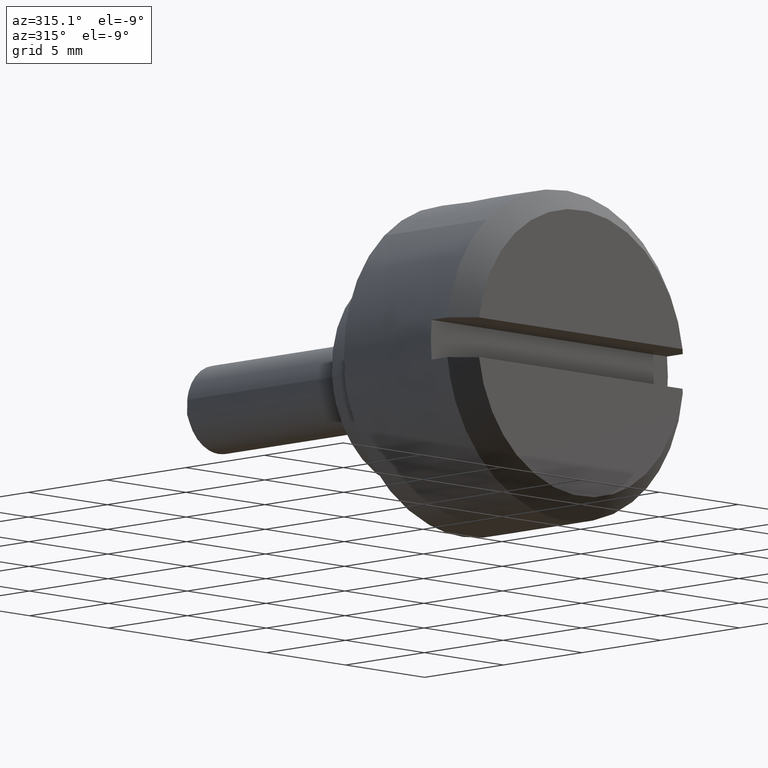
[diagram: clean part render]
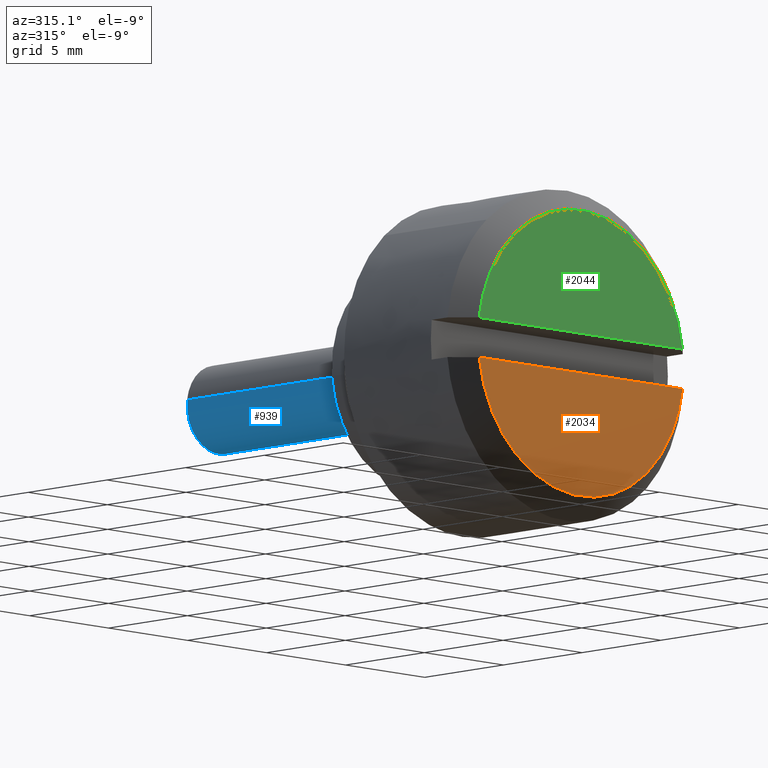
[diagram: same view with three faces highlighted in distinct colors, each labeled with its STEP entity id]
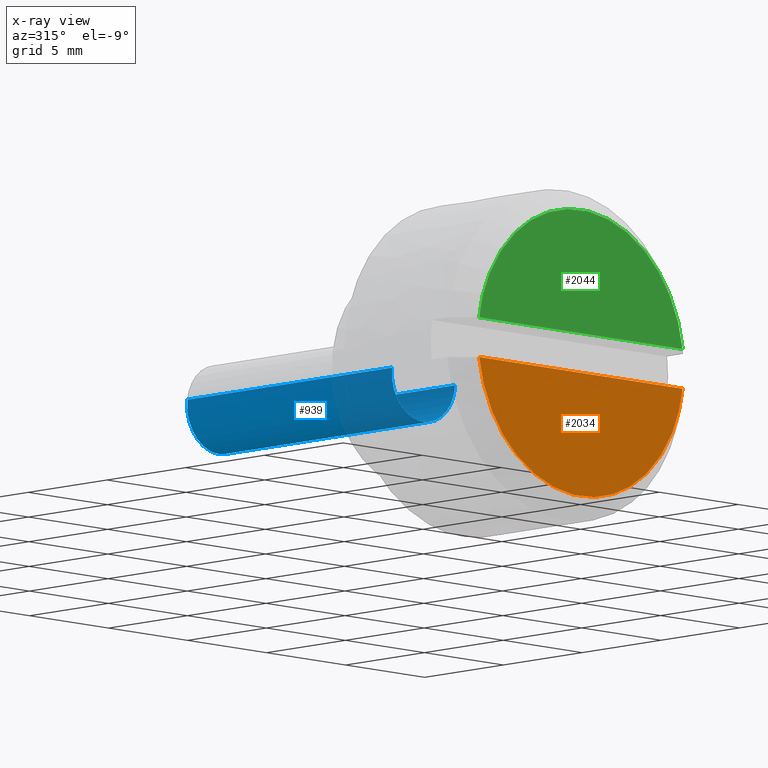
[diagram: x-ray of the same camera — body ghosted, the three highlighted faces saturated]
A machine part, auxiliary view with three faces highlighted in distinct colors.
The next image is the same camera in x-ray (body ghosted, the three faces saturated) — at least one of them is partly hidden behind the body in this view.
Their STEP definitions:

[orange] entity #2034 — the highlighted face is a freeform B-spline surface patch.
#1807=CARTESIAN_POINT('',(-10.0,6.437390775772459,-0.899999999999984));
#1808=VERTEX_POINT('',#1807);
#1816=CARTESIAN_POINT('',(-10.0,-6.437390775772459,-0.899999999999984));
#1817=VERTEX_POINT('',#1816);
#1818=CARTESIAN_POINT('',(-10.0,6.437390775772459,-0.899999999999984));
#1819=CARTESIAN_POINT('',(-10.0,-6.437390775772459,-0.899999999999984));
#1820=QUASI_UNIFORM_CURVE('',1,(#1818,#1819),.UNSPECIFIED.,.F.,.U.);
#1821=EDGE_CURVE('',#1808,#1817,#1820,.T.);
#1966=CARTESIAN_POINT('',(-10.0,6.437390775772435,-0.899999999999981));
#1967=CARTESIAN_POINT('',(-10.000000000000002,5.654464870610936,-6.500000000000000));
#1968=CARTESIAN_POINT('',(-10.0,0.0,-6.500000000000000));
#1969=CARTESIAN_POINT('',(-10.000000000000002,-5.654464870610934,-6.500000000000000));
#1970=CARTESIAN_POINT('',(-10.0,-6.437390775772435,-0.899999999999984));
#1978=(BOUNDED_CURVE()B_SPLINE_CURVE(2,(#1966,#1967,#1968,#1969,#1970),.UNSPECIFIED.,.F.,.U.)B_SPLINE_CURVE_WITH_KNOTS((3,2,3),(0.0,0.500000000000000,1.0),.UNSPECIFIED.)CURVE()GEOMETRIC_REPRESENTATION_ITEM()RATIONAL_B_SPLINE_CURVE((1.0,0.754473836014721,1.0,0.754473836014721,1.0))REPRESENTATION_ITEM(''));
#1979=EDGE_CURVE('',#1808,#1817,#1978,.T.);
#2025=CARTESIAN_POINT('',(-10.0,-7.080486210177540,-6.779719989146106));
#2026=CARTESIAN_POINT('',(-10.0,7.080486440396576,-6.779719989146106));
#2027=CARTESIAN_POINT('',(-10.0,-7.080486210177540,-0.620279860650166));
#2028=CARTESIAN_POINT('',(-10.0,7.080486440396576,-0.620279860650166));
#2029=B_SPLINE_SURFACE_WITH_KNOTS('',1,1,((#2025,#2027),(#2026,#2028)),.UNSPECIFIED.,.F.,.F.,.U.,(2,2),(2,2),(0.0,14.160972650574120),(0.0,6.159440128495940),.UNSPECIFIED.);
#2030=ORIENTED_EDGE('',*,*,#1821,.F.);
#2031=ORIENTED_EDGE('',*,*,#1979,.T.);
#2032=EDGE_LOOP('',(#2030,#2031));
#2033=FACE_OUTER_BOUND('',#2032,.T.);
#2034=ADVANCED_FACE('',(#2033),#2029,.F.);

[blue] entity #939 — the highlighted face is a freeform B-spline surface patch.
#833=CARTESIAN_POINT('',(13.325000000000012,1.982515705203937,0.265541761320796));
#834=CARTESIAN_POINT('',(13.325000000000014,1.984272318139370,0.250763562571162));
#835=CARTESIAN_POINT('',(13.325000000000012,1.992775230897211,0.179229457275955));
#836=CARTESIAN_POINT('',(13.325000000000010,1.996269596843733,0.122097079069714));
#837=CARTESIAN_POINT('',(13.325000000000012,2.118366675913447,-1.874172517774020));
#838=CARTESIAN_POINT('',(13.325000000000010,0.122097079069714,-1.996269596843733));
#839=CARTESIAN_POINT('',(13.325000000000012,-1.874172517774020,-2.118366675913447));
#840=CARTESIAN_POINT('',(13.325000000000008,-1.997147704182624,-0.107740150986346));
#841=CARTESIAN_POINT('',(13.325000000000017,-1.998020595343300,-0.093468506662931));
#842=CARTESIAN_POINT('',(-0.333124999999999,1.982515705203937,0.265541761320796));
#843=CARTESIAN_POINT('',(-0.333124999999999,1.984272318139370,0.250763562571162));
#844=CARTESIAN_POINT('',(-0.333124999999999,1.992775230897211,0.179229457275955));
#845=CARTESIAN_POINT('',(-0.333124999999999,1.996269596843733,0.122097079069714));
#846=CARTESIAN_POINT('',(-0.333124999999999,2.118366675913447,-1.874172517774020));
#847=CARTESIAN_POINT('',(-0.333124999999999,0.122097079069714,-1.996269596843733));
#848=CARTESIAN_POINT('',(-0.333124999999999,-1.874172517774020,-2.118366675913447));
#849=CARTESIAN_POINT('',(-0.333124999999999,-1.997147704182624,-0.107740150986346));
#850=CARTESIAN_POINT('',(-0.333124999999999,-1.998020595343300,-0.093468506662931));
#858=(BOUNDED_SURFACE()B_SPLINE_SURFACE(2,1,((#833,#842),(#834,#843),(#835,#844),(#836,#845),(#837,#846),(#838,#847),(#839,#848),(#840,#849),(#841,#850)),.UNSPECIFIED.,.F.,.F.,.U.)B_SPLINE_SURFACE_WITH_KNOTS((3,1,2,2,1,3),(2,2),(0.0,0.033799846424004,0.166348186383395,3.480056685368154,6.793765184352914,6.827569123756526),(0.0,13.658125000000011),.UNSPECIFIED.)GEOMETRIC_REPRESENTATION_ITEM()RATIONAL_B_SPLINE_SURFACE(((0.972008777654947,0.972008777654947),(0.974757289225037,0.974757289225037),(0.988284271247462,0.988284271247462),(1.0,1.0),(0.707106781186548,0.707106781186548),(1.0,1.0),(0.707106781186548,0.707106781186548),(1.002987874347889,1.002987874347889),(1.005975748695778,1.005975748695778)))REPRESENTATION_ITEM('')SURFACE());
#859=CARTESIAN_POINT('',(13.0,1.986019052724787,0.236068469334932));
#860=VERTEX_POINT('',#859);
#861=CARTESIAN_POINT('',(13.000000000000011,0.0,-2.000000000000009));
#862=VERTEX_POINT('',#861);
#863=CARTESIAN_POINT('',(13.000000000000005,1.986019052724787,0.236068469334932));
#864=CARTESIAN_POINT('',(13.000000000000005,2.000000000000000,0.118448239325462));
#865=CARTESIAN_POINT('',(13.0,2.0,0.0));
#866=CARTESIAN_POINT('',(13.000000000000002,2.000000000000000,-2.000000000000000));
#867=CARTESIAN_POINT('',(13.0,0.0,-2.0));
#875=(BOUNDED_CURVE()B_SPLINE_CURVE(2,(#863,#864,#865,#866,#867),.UNSPECIFIED.,.F.,.U.)B_SPLINE_CURVE_WITH_KNOTS((3,2,3),(0.459124947023999,0.500000000000000,1.0),.UNSPECIFIED.)CURVE()GEOMETRIC_REPRESENTATION_ITEM()RATIONAL_B_SPLINE_CURVE((0.956026754180742,0.976055948329377,1.0,0.707106781186548,1.0))REPRESENTATION_ITEM(''));
#876=EDGE_CURVE('',#860,#862,#875,.T.);
#877=ORIENTED_EDGE('',*,*,#876,.T.);
#878=CARTESIAN_POINT('',(13.000000000000011,-1.996269810116667,-0.122093591988119));
#879=VERTEX_POINT('',#878);
#880=CARTESIAN_POINT('',(13.0,0.0,-2.0));
#881=CARTESIAN_POINT('',(13.000000000000002,-1.881415426403788,-2.000000000000000));
#882=CARTESIAN_POINT('',(13.000000000000011,-1.996269810116666,-0.122093591988119));
#890=(BOUNDED_CURVE()B_SPLINE_CURVE(2,(#880,#881,#882),.UNSPECIFIED.,.F.,.U.)B_SPLINE_CURVE_WITH_KNOTS((3,3),(0.0,0.478666527293167),.UNSPECIFIED.)CURVE()GEOMETRIC_REPRESENTATION_ITEM()RATIONAL_B_SPLINE_CURVE((1.0,0.719603640165694,0.976072687641518))REPRESENTATION_ITEM(''));
#891=EDGE_CURVE('',#862,#879,#890,.T.);
#892=ORIENTED_EDGE('',*,*,#891,.T.);
#893=CARTESIAN_POINT('',(2.775558E-017,-1.996269807542662,-0.122093634075130));
#894=VERTEX_POINT('',#893);
#895=CARTESIAN_POINT('',(13.000000000000011,-1.996269810116667,-0.122093591988119));
#896=CARTESIAN_POINT('',(2.775558E-017,-1.996269807542662,-0.122093634075130));
#897=QUASI_UNIFORM_CURVE('',1,(#895,#896),.UNSPECIFIED.,.F.,.U.);
#898=EDGE_CURVE('',#879,#894,#897,.T.);
#899=ORIENTED_EDGE('',*,*,#898,.T.);
#900=CARTESIAN_POINT('',(0.0,0.0,-2.0));
#901=VERTEX_POINT('',#900);
#902=CARTESIAN_POINT('',(0.0,0.0,-2.0));
#903=CARTESIAN_POINT('',(0.0,-1.881415386664119,-2.000000000000000));
#904=CARTESIAN_POINT('',(2.775558E-017,-1.996269807542662,-0.122093634075130));
#912=(BOUNDED_CURVE()B_SPLINE_CURVE(2,(#902,#903,#904),.UNSPECIFIED.,.F.,.U.)B_SPLINE_CURVE_WITH_KNOTS((3,3),(0.500000000000000,0.739333260008808),.UNSPECIFIED.)CURVE()GEOMETRIC_REPRESENTATION_ITEM()RATIONAL_B_SPLINE_CURVE((1.0,0.719603644427614,0.976072679845051))REPRESENTATION_ITEM(''));
#913=EDGE_CURVE('',#901,#894,#912,.T.);
#914=ORIENTED_EDGE('',*,*,#913,.F.);
#915=CARTESIAN_POINT('',(2.839428E-017,1.986019052724787,0.236068469334932));
#916=VERTEX_POINT('',#915);
#917=CARTESIAN_POINT('',(2.839428E-017,1.986019052724787,0.236068469334932));
#918=CARTESIAN_POINT('',(0.0,2.000000000000000,0.118448239325462));
#919=CARTESIAN_POINT('',(0.0,2.0,0.0));
#920=CARTESIAN_POINT('',(0.0,2.000000000000000,-2.000000000000000));
#921=CARTESIAN_POINT('',(0.0,0.0,-2.0));
#929=(BOUNDED_CURVE()B_SPLINE_CURVE(2,(#917,#918,#919,#920,#921),.UNSPECIFIED.,.F.,.U.)B_SPLINE_CURVE_WITH_KNOTS((3,2,3),(0.229562473511999,0.250000000000000,0.500000000000000),.UNSPECIFIED.)CURVE()GEOMETRIC_REPRESENTATION_ITEM()RATIONAL_B_SPLINE_CURVE((0.956026754180742,0.976055948329377,1.0,0.707106781186548,1.0))REPRESENTATION_ITEM(''));
#930=EDGE_CURVE('',#916,#901,#929,.T.);
#931=ORIENTED_EDGE('',*,*,#930,.F.);
#932=CARTESIAN_POINT('',(13.0,1.986019052724787,0.236068469334932));
#933=CARTESIAN_POINT('',(2.839428E-017,1.986019052724787,0.236068469334932));
#934=QUASI_UNIFORM_CURVE('',1,(#932,#933),.UNSPECIFIED.,.F.,.U.);
#935=EDGE_CURVE('',#860,#916,#934,.T.);
#936=ORIENTED_EDGE('',*,*,#935,.F.);
#937=EDGE_LOOP('',(#877,#892,#899,#914,#931,#936));
#938=FACE_OUTER_BOUND('',#937,.T.);
#939=ADVANCED_FACE('',(#938),#858,.T.);

[green] entity #2044 — the highlighted face is a freeform B-spline surface patch.
#1857=CARTESIAN_POINT('',(-10.0,-6.437390775772450,0.900000000000013));
#1858=VERTEX_POINT('',#1857);
#1866=CARTESIAN_POINT('',(-10.0,6.437390775772450,0.900000000000013));
#1867=VERTEX_POINT('',#1866);
#1868=CARTESIAN_POINT('',(-10.0,6.437390775772450,0.900000000000013));
#1869=CARTESIAN_POINT('',(-10.0,-6.437390775772450,0.900000000000013));
#1870=QUASI_UNIFORM_CURVE('',1,(#1868,#1869),.UNSPECIFIED.,.F.,.U.);
#1871=EDGE_CURVE('',#1867,#1858,#1870,.T.);
#2006=CARTESIAN_POINT('',(-10.0,-6.437390775772430,0.900000000000011));
#2007=CARTESIAN_POINT('',(-10.0,-5.654464870610910,6.499999999999999));
#2008=CARTESIAN_POINT('',(-10.0,0.0,6.500000000000000));
#2009=CARTESIAN_POINT('',(-10.0,5.654464870610909,6.499999999999999));
#2010=CARTESIAN_POINT('',(-10.0,6.437390775772430,0.900000000000012));
#2018=(BOUNDED_CURVE()B_SPLINE_CURVE(2,(#2006,#2007,#2008,#2009,#2010),.UNSPECIFIED.,.F.,.U.)B_SPLINE_CURVE_WITH_KNOTS((3,2,3),(0.0,0.500000000000000,1.0),.UNSPECIFIED.)CURVE()GEOMETRIC_REPRESENTATION_ITEM()RATIONAL_B_SPLINE_CURVE((1.0,0.754473836014722,1.0,0.754473836014722,1.0))REPRESENTATION_ITEM(''));
#2019=EDGE_CURVE('',#1858,#1867,#2018,.T.);
#2035=CARTESIAN_POINT('',(-10.0,-7.080486210177531,0.620279958285107));
#2036=CARTESIAN_POINT('',(-10.0,7.080486440396565,0.620279958285107));
#2037=CARTESIAN_POINT('',(-10.0,-7.080486210177531,6.779720141850701));
#2038=CARTESIAN_POINT('',(-10.0,7.080486440396565,6.779720141850701));
#2039=B_SPLINE_SURFACE_WITH_KNOTS('',1,1,((#2035,#2037),(#2036,#2038)),.UNSPECIFIED.,.F.,.F.,.U.,(2,2),(2,2),(0.0,14.160972650574100),(0.0,6.159440183565594),.UNSPECIFIED.);
#2040=ORIENTED_EDGE('',*,*,#1871,.T.);
#2041=ORIENTED_EDGE('',*,*,#2019,.T.);
#2042=EDGE_LOOP('',(#2040,#2041));
#2043=FACE_OUTER_BOUND('',#2042,.T.);
#2044=ADVANCED_FACE('',(#2043),#2039,.F.);